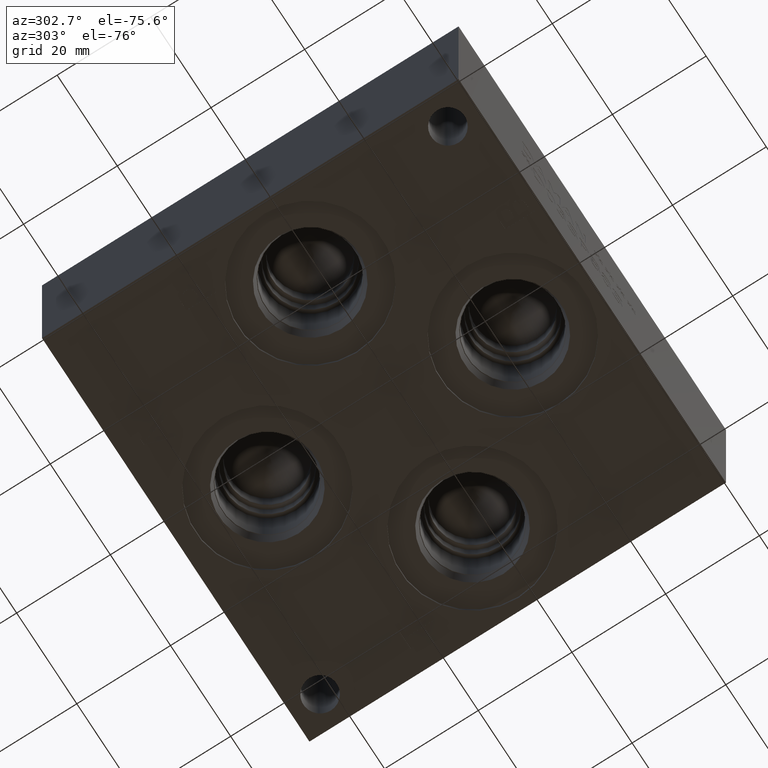
[diagram: clean part render]
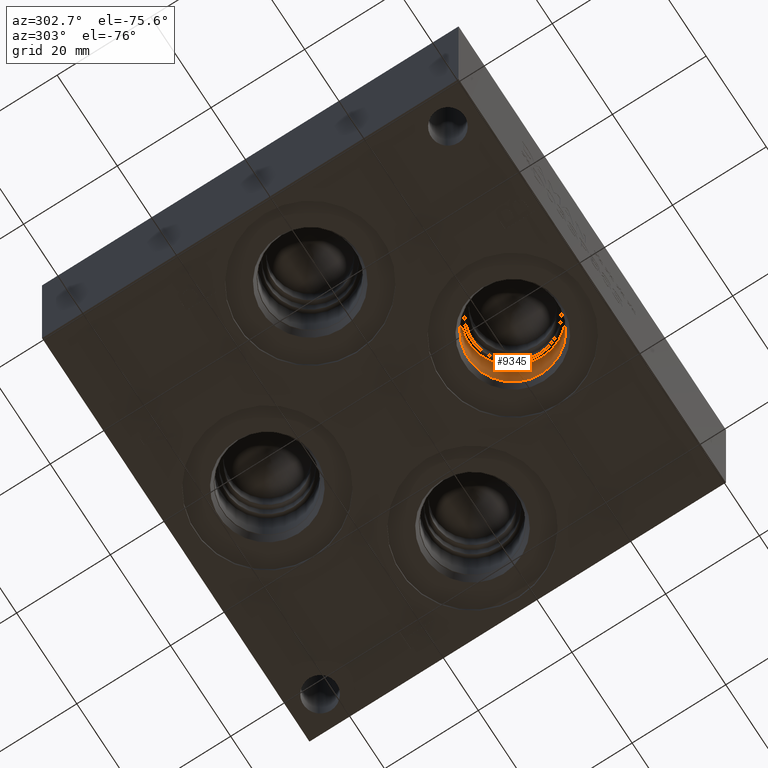
[diagram: same view with one face highlighted and labeled with its STEP entity id]
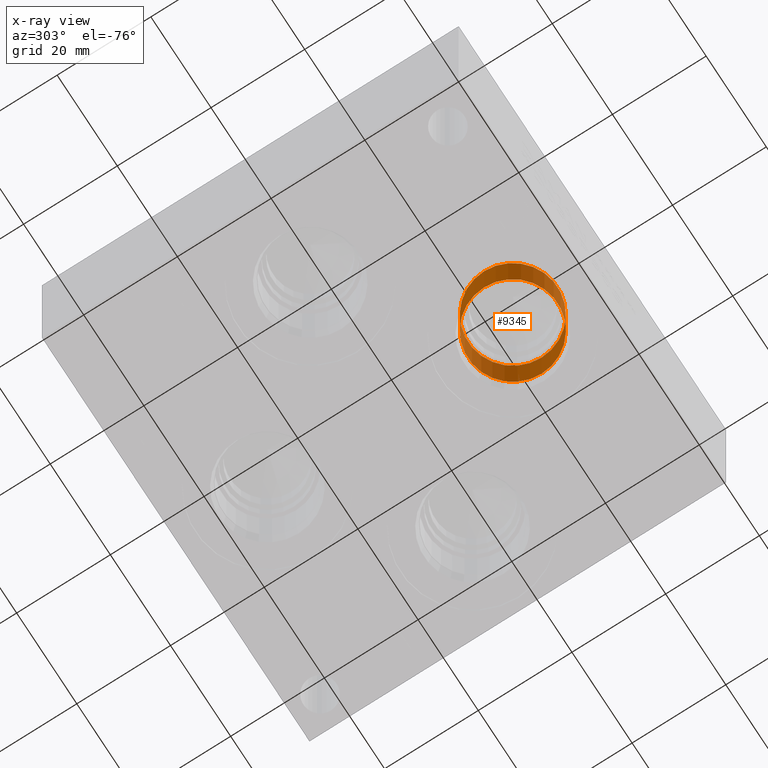
[diagram: x-ray of the same camera — body ghosted, the highlighted face saturated]
A machine part, auxiliary view. The second image highlights one B-rep face of the part: STEP entity #9345.
The next image is the same camera in x-ray: the body ghosted, the highlighted face saturated — about 1% of this face is hidden behind the body in this view.
In plain terms, the highlighted cylindrical surface (bore or boss wall) has radius 9.525 mm, axis along (0, 0, -1).
Its self-contained STEP definition (entity closure, byte-faithful):
#53=CYLINDRICAL_SURFACE('',#9762,9.525);
#112=CIRCLE('',#9715,9.525);
#138=CIRCLE('',#9759,9.525);
#139=CIRCLE('',#9760,9.525);
#986=FACE_OUTER_BOUND('',#1514,.T.);
#1514=EDGE_LOOP('',(#8140,#8141,#8142,#8143,#8144));
#2418=LINE('',#15971,#3294);
#3294=VECTOR('',#11430,9.525);
#4384=VERTEX_POINT('',#15874);
#4414=VERTEX_POINT('',#15964);
#4415=VERTEX_POINT('',#15965);
#5640=EDGE_CURVE('',#4384,#4384,#112,.T.);
#5681=EDGE_CURVE('',#4414,#4415,#138,.T.);
#5682=EDGE_CURVE('',#4415,#4414,#139,.T.);
#5684=EDGE_CURVE('',#4384,#4415,#2418,.T.);
#8140=ORIENTED_EDGE('',*,*,#5640,.T.);
#8141=ORIENTED_EDGE('',*,*,#5684,.T.);
#8142=ORIENTED_EDGE('',*,*,#5681,.F.);
#8143=ORIENTED_EDGE('',*,*,#5682,.F.);
#8144=ORIENTED_EDGE('',*,*,#5684,.F.);
#9345=ADVANCED_FACE('',(#986),#53,.F.);
#9715=AXIS2_PLACEMENT_3D('',#15876,#11319,#11320);
#9759=AXIS2_PLACEMENT_3D('',#15966,#11422,#11423);
#9760=AXIS2_PLACEMENT_3D('',#15967,#11424,#11425);
#9762=AXIS2_PLACEMENT_3D('',#15970,#11428,#11429);
#11319=DIRECTION('center_axis',(0.,0.,-1.));
#11320=DIRECTION('ref_axis',(1.,0.,0.));
#11422=DIRECTION('center_axis',(0.,0.,-1.));
#11423=DIRECTION('ref_axis',(1.,0.,0.));
#11424=DIRECTION('center_axis',(0.,0.,-1.));
#11425=DIRECTION('ref_axis',(1.,0.,0.));
#11428=DIRECTION('center_axis',(0.,0.,-1.));
#11429=DIRECTION('ref_axis',(1.,0.,0.));
#11430=DIRECTION('',(0.,0.,1.));
#15874=CARTESIAN_POINT('',(35.7124,17.4625,3.4036));
#15876=CARTESIAN_POINT('Origin',(45.2374,17.4625,3.4036));
#15964=CARTESIAN_POINT('',(54.7624,17.4625,15.0622));
#15965=CARTESIAN_POINT('',(35.7124,17.4625,15.0622));
#15966=CARTESIAN_POINT('Origin',(45.2374,17.4625,15.0622));
#15967=CARTESIAN_POINT('Origin',(45.2374,17.4625,15.0622));
#15970=CARTESIAN_POINT('Origin',(45.2374,17.4625,7.5311));
#15971=CARTESIAN_POINT('',(35.7124,17.4625,7.5311));